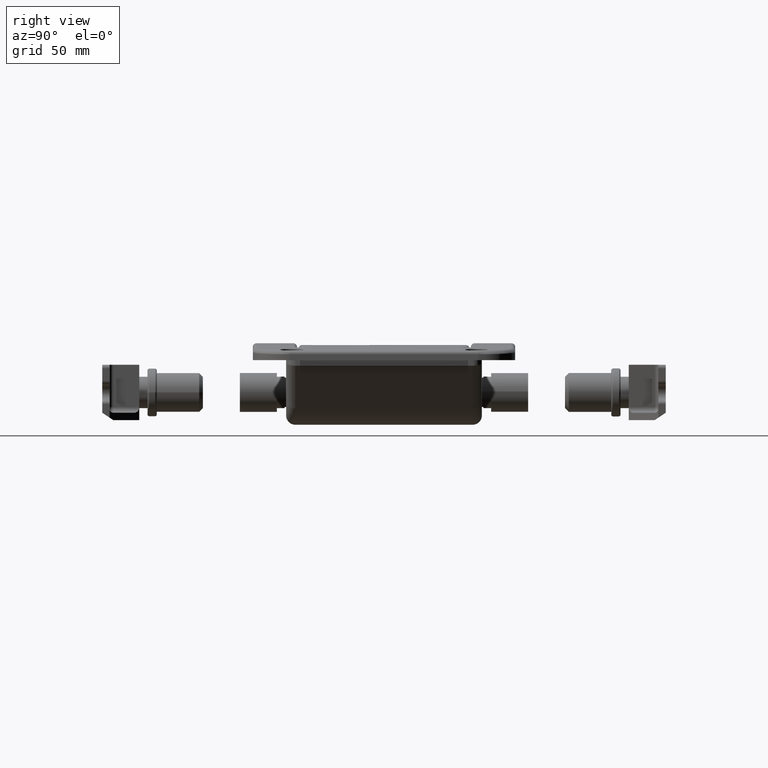
[diagram: clean part render]
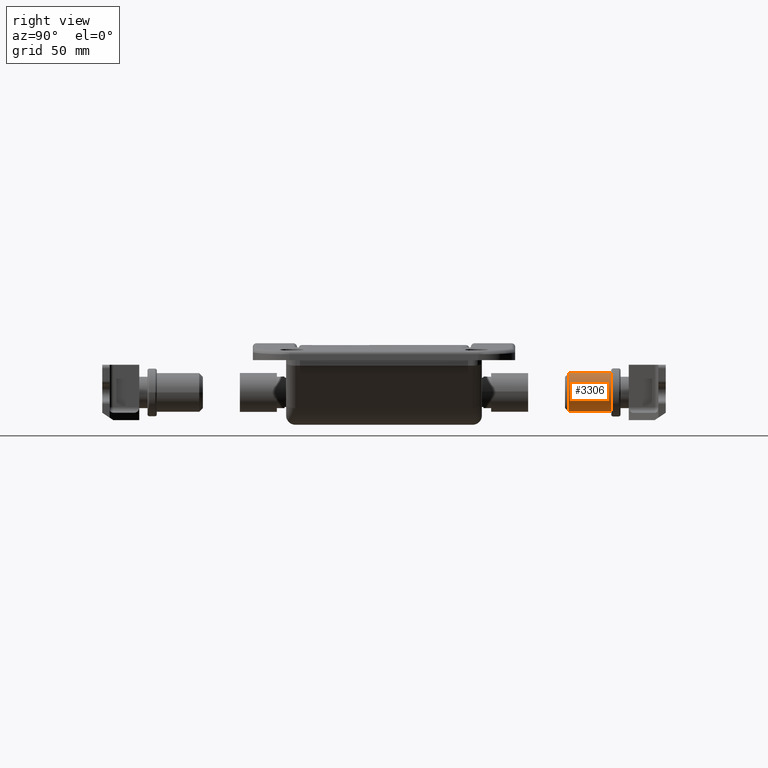
[diagram: same view with one face highlighted and labeled with its STEP entity id]
A machine part, right view. The second image highlights one B-rep face of the part: STEP entity #3306.
In plain terms, the highlighted cylindrical surface (edge-blend (fillet) strip) has radius 10.5 mm, axis along (-0, 1, 0).
Its self-contained STEP definition (entity closure, byte-faithful):
#1135 = VERTEX_POINT ( 'NONE', #8885 ) ;
#1152 = VERTEX_POINT ( 'NONE', #8902 ) ;
#1154 = VERTEX_POINT ( 'NONE', #8904 ) ;
#1161 = VERTEX_POINT ( 'NONE', #8911 ) ;
#3306 = ADVANCED_FACE ( 'NONE', ( #15941 ), #15942, .T. ) ;
#5404 = EDGE_LOOP ( 'NONE', ( #5670, #5671, #5672, #5673 ) ) ;
#5670 = ORIENTED_EDGE ( 'NONE', *, *, #6373, .F. ) ;
#5671 = ORIENTED_EDGE ( 'NONE', *, *, #6434, .T. ) ;
#5672 = ORIENTED_EDGE ( 'NONE', *, *, #6375, .T. ) ;
#5673 = ORIENTED_EDGE ( 'NONE', *, *, #6435, .F. ) ;
#6373 = EDGE_CURVE ( 'NONE', #1161, #1152, #24528, .T. ) ;
#6375 = EDGE_CURVE ( 'NONE', #1135, #1154, #24531, .T. ) ;
#6434 = EDGE_CURVE ( 'NONE', #1161, #1135, #24620, .T. ) ;
#6435 = EDGE_CURVE ( 'NONE', #1152, #1154, #24621, .T. ) ;
#8885 = CARTESIAN_POINT ( 'NONE',  ( 0.0000000000000000000, 40.50000000000000000, -10.50000000000000400 ) ) ;
#8902 = CARTESIAN_POINT ( 'NONE',  ( 1.285879139104721800E-015, 17.50000000000000000, 10.50000000000000700 ) ) ;
#8904 = CARTESIAN_POINT ( 'NONE',  ( 0.0000000000000000000, 17.50000000000000000, -10.50000000000000700 ) ) ;
#8911 = CARTESIAN_POINT ( 'NONE',  ( 1.285879139104721200E-015, 40.50000000000000000, 10.50000000000000400 ) ) ;
#13424 = AXIS2_PLACEMENT_3D ( 'NONE', #17658, #17659, #17660 ) ;
#15941 = FACE_OUTER_BOUND ( 'NONE', #5404, .T. ) ;
#15942 = CYLINDRICAL_SURFACE ( 'NONE', #13424, 10.50000000000000500 ) ;
#17658 = CARTESIAN_POINT ( 'NONE',  ( 0.0000000000000000000, 7.500000000000000000, 0.0000000000000000000 ) ) ;
#17659 = DIRECTION ( 'NONE',  ( -0.0000000000000000000, -1.000000000000000000, -0.0000000000000000000 ) ) ;
#17660 = DIRECTION ( 'NONE',  ( 0.0000000000000000000, 0.0000000000000000000, -1.000000000000000000 ) ) ;
#23100 = AXIS2_PLACEMENT_3D ( 'NONE', #23828, #23829, #23830 ) ;
#23101 = AXIS2_PLACEMENT_3D ( 'NONE', #23831, #23832, #23833 ) ;
#23659 = CARTESIAN_POINT ( 'NONE',  ( 1.285879139104721600E-015, 7.500000000000000000, 10.50000000000000500 ) ) ;
#23660 = DIRECTION ( 'NONE',  ( -0.0000000000000000000, -1.000000000000000000, -0.0000000000000000000 ) ) ;
#23664 = CARTESIAN_POINT ( 'NONE',  ( 0.0000000000000000000, 7.500000000000000000, -10.50000000000000500 ) ) ;
#23665 = DIRECTION ( 'NONE',  ( -0.0000000000000000000, -1.000000000000000000, -0.0000000000000000000 ) ) ;
#23828 = CARTESIAN_POINT ( 'NONE',  ( 0.0000000000000000000, 40.50000000000000000, 0.0000000000000000000 ) ) ;
#23829 = DIRECTION ( 'NONE',  ( -0.0000000000000000000, -1.000000000000000000, -0.0000000000000000000 ) ) ;
#23830 = DIRECTION ( 'NONE',  ( 0.0000000000000000000, 0.0000000000000000000, -1.000000000000000000 ) ) ;
#23831 = CARTESIAN_POINT ( 'NONE',  ( 0.0000000000000000000, 17.50000000000000000, 0.0000000000000000000 ) ) ;
#23832 = DIRECTION ( 'NONE',  ( -0.0000000000000000000, -1.000000000000000000, -0.0000000000000000000 ) ) ;
#23833 = DIRECTION ( 'NONE',  ( 0.0000000000000000000, 0.0000000000000000000, -1.000000000000000000 ) ) ;
#24528 = LINE ( 'NONE', #23659, #24530 ) ;
#24530 = VECTOR ( 'NONE', #23660, 1000.000000000000000 ) ;
#24531 = LINE ( 'NONE', #23664, #24533 ) ;
#24533 = VECTOR ( 'NONE', #23665, 1000.000000000000000 ) ;
#24620 = CIRCLE ( 'NONE', #23100, 10.50000000000000400 ) ;
#24621 = CIRCLE ( 'NONE', #23101, 10.50000000000000700 ) ;